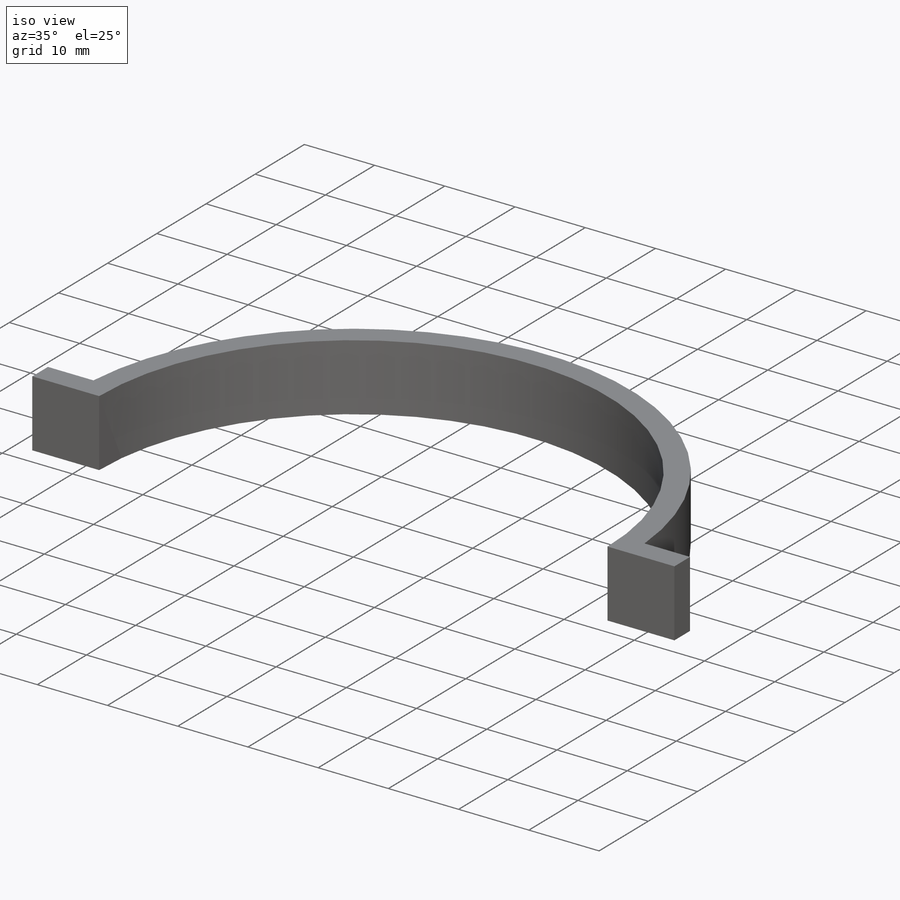
[diagram: iso view]
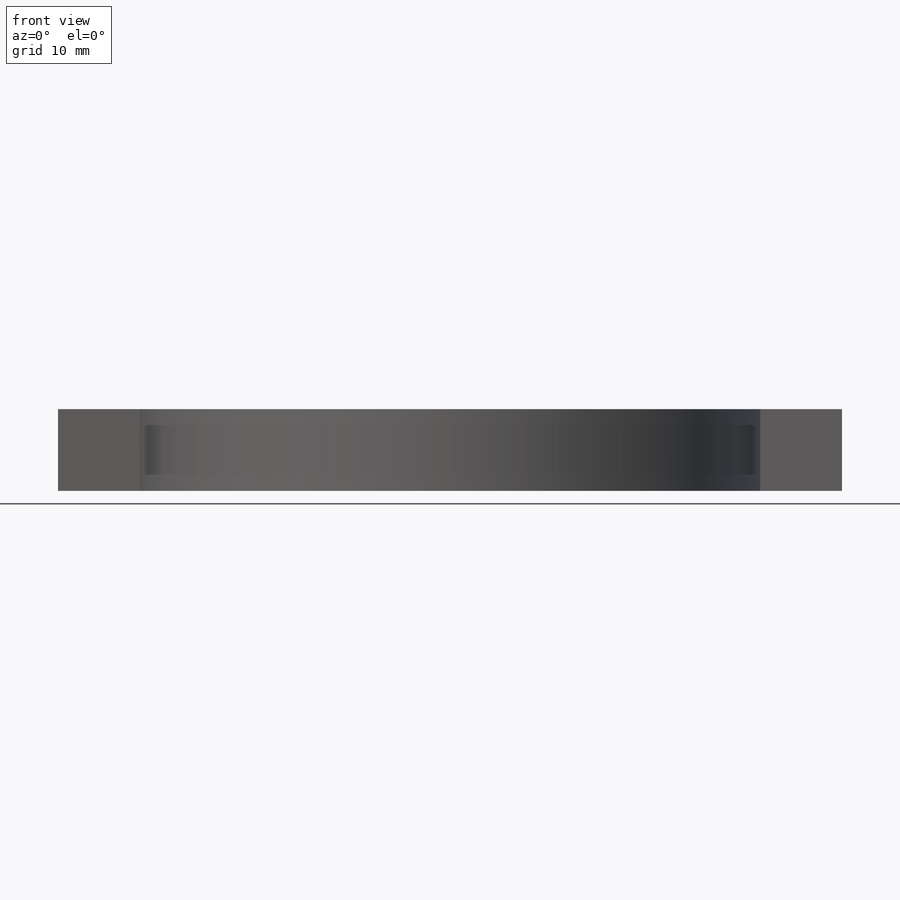
[diagram: front view]
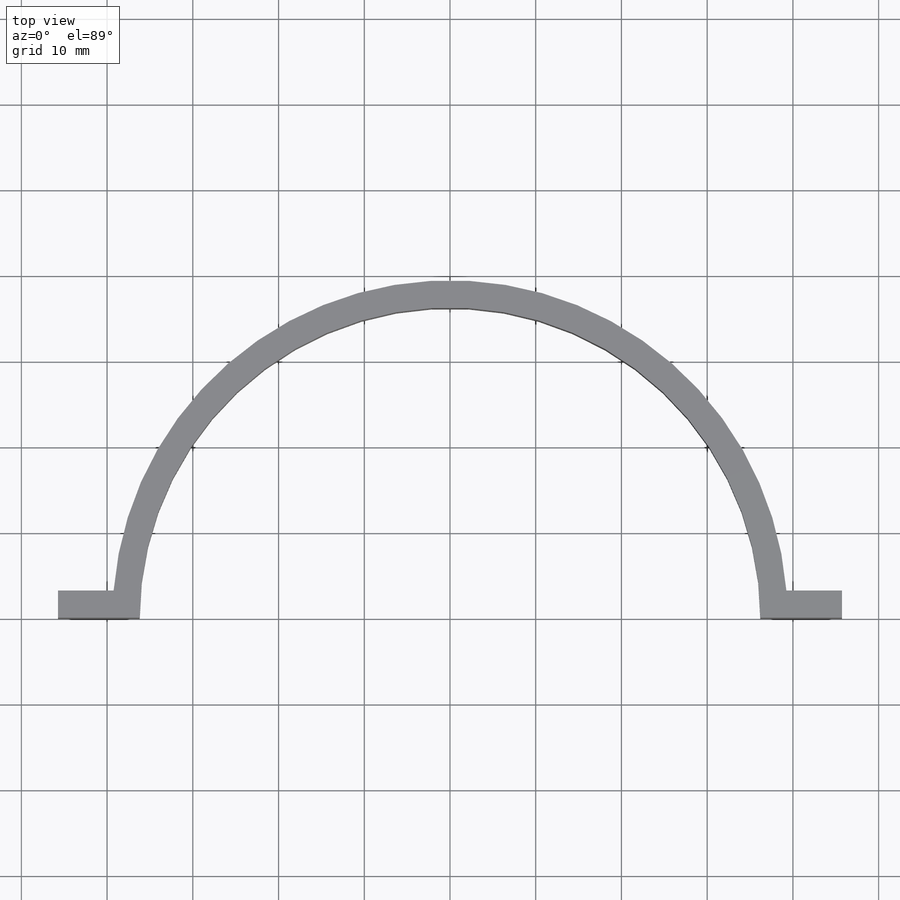
[diagram: top view]
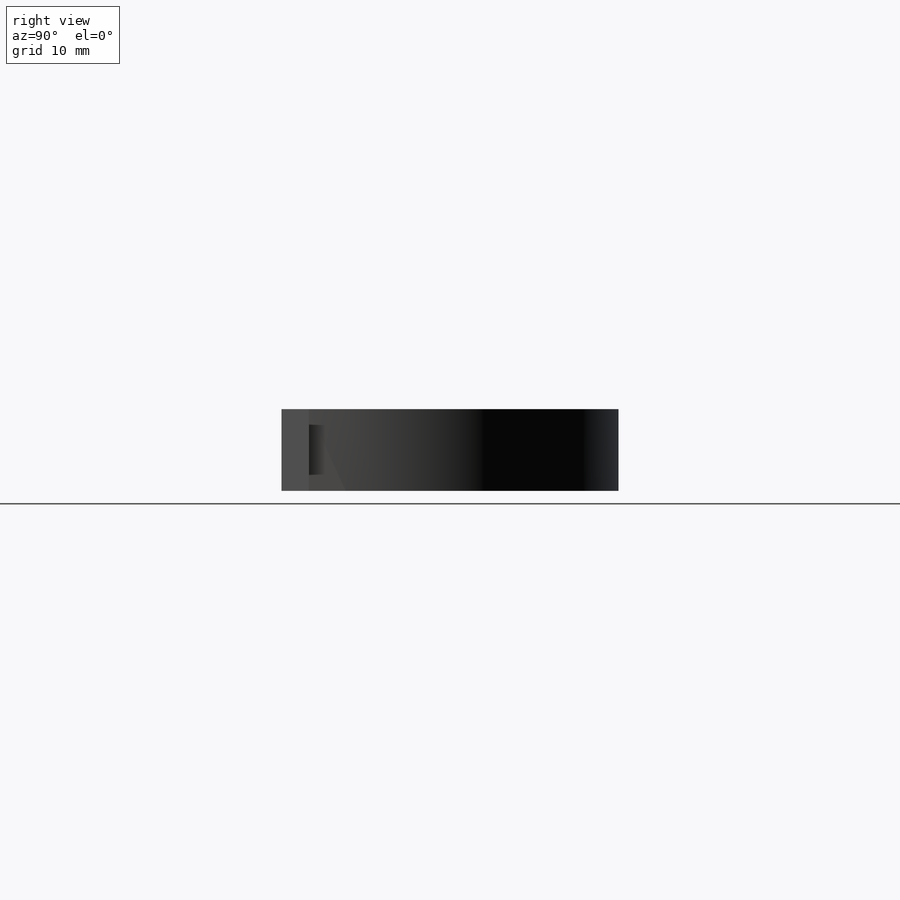
[diagram: right view]
SOLIDWORKS PART (.sldprt)
format: sldprt  version: not decoded by parser v0  size: 151,040 bytes
history: native  units: mm
features: sketch x5, extrude x4, plane x2, material x1, revolve x1 (+13 scaffold rows collapsed)
feature tree (26):
  scaffold x13  (default folders/planes/origin — collapsed)
  material  "Material <not specified>"
  sketch  "Sketch1"  dims[D1=36.195mm D2=3.175mm D3=9.525mm]
  revolve  "Revolve1"  Angle=180deg
  plane  "Plane1"
  sketch  "Sketch2"  dims[D1=3.175mm]
  extrude  "Boss-Extrude1"  [1 undecoded]
  extrude  "Boss-Extrude2"  [1 undecoded]
  sketch  "Sketch2<2>"  dims[D1=6.35mm]
  plane  "Plane2"
  sketch  "Sketch4"  dims[D1=3.175mm]
  extrude  "Boss-Extrude3"  [1 undecoded]
  extrude  "Boss-Extrude4"  [1 undecoded]
  sketch  "Sketch4<2>"  dims[D1=6.35mm]
decode coverage: 6 of 10 modeling features carry decoded parameters
note: 4 parameter values undecoded
summary: no parameter record found for 4 features
note: suppression state not decoded; provenance and decode notes live in map.json
